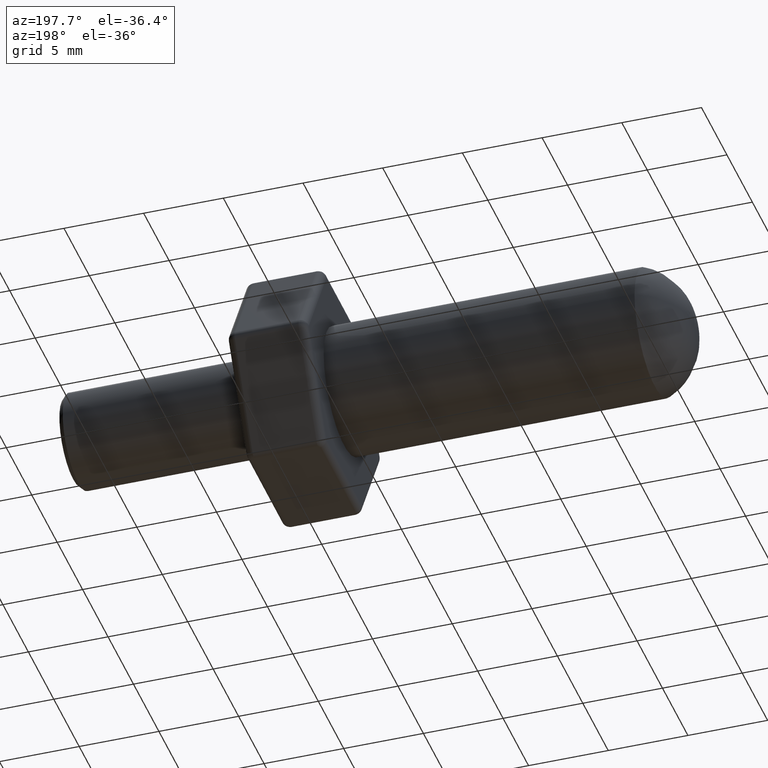
[diagram: clean part render]
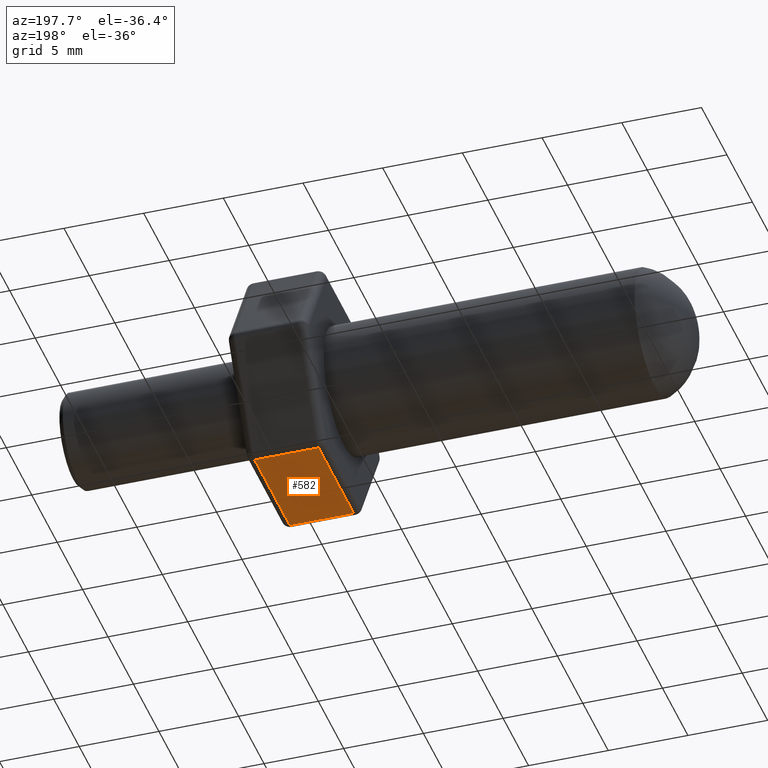
[diagram: same view with one face highlighted and labeled with its STEP entity id]
A machine part, auxiliary view. The second image highlights one B-rep face of the part: STEP entity #582.
In plain terms, the highlighted planar face has unit normal (0, -0, -1).
Its self-contained STEP definition (entity closure, byte-faithful):
#21=PLANE('',#664);
#36=LINE('',#975,#75);
#39=LINE('',#985,#78);
#42=LINE('',#998,#81);
#43=LINE('',#1004,#82);
#75=VECTOR('',#766,10.);
#78=VECTOR('',#779,10.);
#81=VECTOR('',#794,10.);
#82=VECTOR('',#803,10.);
#140=FACE_OUTER_BOUND('',#183,.T.);
#183=EDGE_LOOP('',(#438,#439,#440,#441));
#270=VERTEX_POINT('',#968);
#272=VERTEX_POINT('',#973);
#274=VERTEX_POINT('',#984);
#277=VERTEX_POINT('',#994);
#323=EDGE_CURVE('',#272,#270,#36,.T.);
#328=EDGE_CURVE('',#270,#274,#39,.T.);
#335=EDGE_CURVE('',#274,#277,#42,.T.);
#338=EDGE_CURVE('',#277,#272,#43,.T.);
#438=ORIENTED_EDGE('',*,*,#323,.F.);
#439=ORIENTED_EDGE('',*,*,#338,.F.);
#440=ORIENTED_EDGE('',*,*,#335,.F.);
#441=ORIENTED_EDGE('',*,*,#328,.F.);
#582=ADVANCED_FACE('',(#140),#21,.T.);
#664=AXIS2_PLACEMENT_3D('',#1003,#801,#802);
#766=DIRECTION('',(1.,0.,0.));
#779=DIRECTION('',(0.,1.,-1.4792020664489E-16));
#794=DIRECTION('',(-1.,0.,0.));
#801=DIRECTION('center_axis',(0.,-1.4792020664489E-16,-1.));
#802=DIRECTION('ref_axis',(0.,1.,-1.4792020664489E-16));
#803=DIRECTION('',(0.,-1.,1.4792020664489E-16));
#968=CARTESIAN_POINT('',(26.5,-3.46410161513776,-6.5));
#973=CARTESIAN_POINT('',(22.5,-3.46410161513776,-6.5));
#975=CARTESIAN_POINT('',(22.,-3.46410161513776,-6.5));
#984=CARTESIAN_POINT('',(26.5,3.46410161513775,-6.5));
#985=CARTESIAN_POINT('',(26.5,-1.87638837486628,-6.5));
#994=CARTESIAN_POINT('',(22.5,3.46410161513775,-6.5));
#998=CARTESIAN_POINT('',(22.,3.46410161513775,-6.5));
#1003=CARTESIAN_POINT('Origin',(22.,-3.75277674973257,-6.5));
#1004=CARTESIAN_POINT('',(22.5,-1.87638837486628,-6.5));